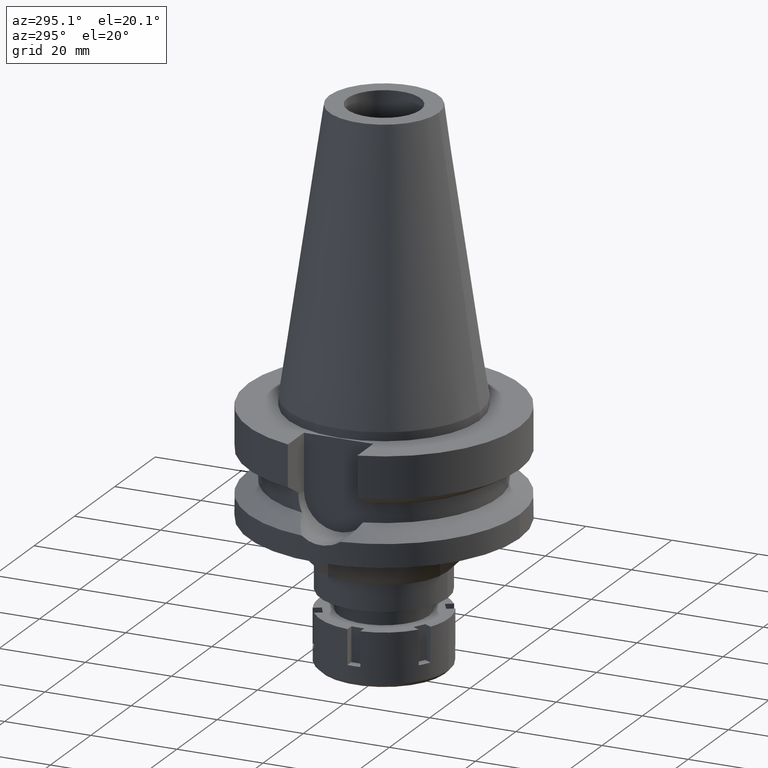
[diagram: clean part render]
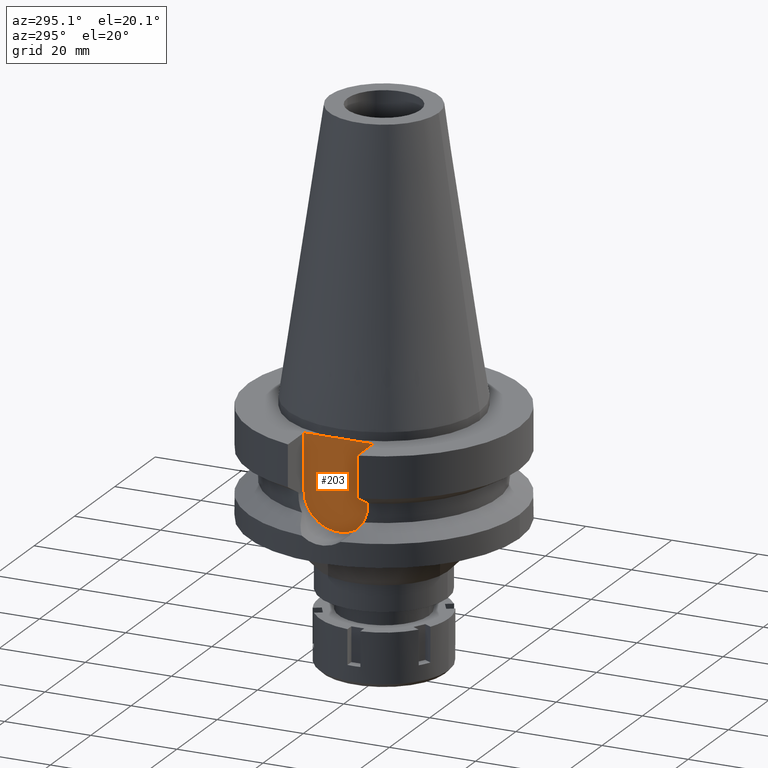
[diagram: same view with one face highlighted and labeled with its STEP entity id]
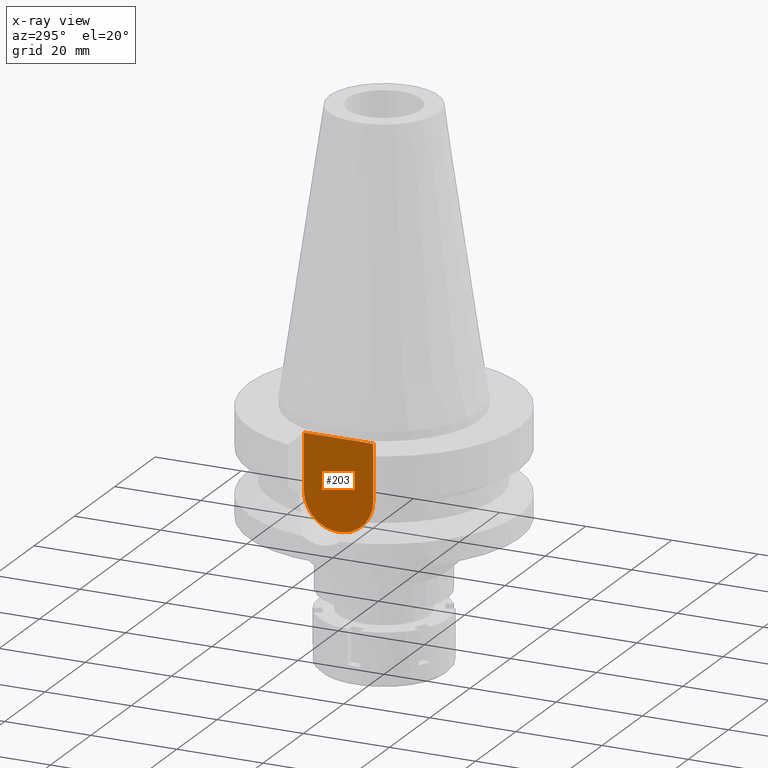
[diagram: x-ray of the same camera — body ghosted, the highlighted face saturated]
A machine part, auxiliary view. The second image highlights one B-rep face of the part: STEP entity #203.
The next image is the same camera in x-ray: the body ghosted, the highlighted face saturated — about 0% of this face is hidden behind the body in this view.
In plain terms, the highlighted planar face has unit normal (-1, 0, 0).
Its self-contained STEP definition (entity closure, byte-faithful):
#12 = ORIENTED_EDGE ( 'NONE', *, *, #2788, .F. ) ;
#41 = DIRECTION ( 'NONE',  ( -1.000000000000000000, 0.0000000000000000000, 0.0000000000000000000 ) ) ;
#202 = LINE ( 'NONE', #2956, #350 ) ;
#203 = ADVANCED_FACE ( 'NONE', ( #3075 ), #892, .T. ) ;
#208 = CARTESIAN_POINT ( 'NONE',  ( -22.50000000000000000, -8.050000000000000711, -14.94999999999999929 ) ) ;
#327 = EDGE_CURVE ( 'NONE', #1791, #2521, #687, .T. ) ;
#350 = VECTOR ( 'NONE', #2361, 1000.000000000000000 ) ;
#363 = DIRECTION ( 'NONE',  ( 0.0000000000000000000, 0.0000000000000000000, 1.000000000000000000 ) ) ;
#582 = CIRCLE ( 'NONE', #642, 8.050000000000000711 ) ;
#611 = CARTESIAN_POINT ( 'NONE',  ( -22.50000000000000000, 8.050000000000000711, -14.94999999999999929 ) ) ;
#642 = AXIS2_PLACEMENT_3D ( 'NONE', #2156, #2750, #3562 ) ;
#687 = LINE ( 'NONE', #1540, #2621 ) ;
#750 = VERTEX_POINT ( 'NONE', #611 ) ;
#892 = PLANE ( 'NONE',  #1479 ) ;
#996 = DIRECTION ( 'NONE',  ( 0.0000000000000000000, 1.000000000000000000, 0.0000000000000000000 ) ) ;
#1425 = CARTESIAN_POINT ( 'NONE',  ( -22.50000000000000000, -8.050000000000000711, -2.000000000000000000 ) ) ;
#1439 = CARTESIAN_POINT ( 'NONE',  ( -22.50000000000000000, -8.050000000000000711, -2.000000000000000000 ) ) ;
#1479 = AXIS2_PLACEMENT_3D ( 'NONE', #1916, #41, #363 ) ;
#1510 = CARTESIAN_POINT ( 'NONE',  ( -22.50000000000000000, 8.050000000000000711, -2.000000000000000000 ) ) ;
#1540 = CARTESIAN_POINT ( 'NONE',  ( -22.50000000000000000, -8.050000000000000711, -2.000000000000000000 ) ) ;
#1695 = LINE ( 'NONE', #1425, #2342 ) ;
#1739 = EDGE_LOOP ( 'NONE', ( #3326, #12, #3155, #2315 ) ) ;
#1744 = DIRECTION ( 'NONE',  ( 0.0000000000000000000, 0.0000000000000000000, -1.000000000000000000 ) ) ;
#1791 = VERTEX_POINT ( 'NONE', #1439 ) ;
#1916 = CARTESIAN_POINT ( 'NONE',  ( -22.50000000000000000, 2.173748068486999793E-14, 0.0000000000000000000 ) ) ;
#2053 = EDGE_CURVE ( 'NONE', #1791, #2669, #1695, .T. ) ;
#2156 = CARTESIAN_POINT ( 'NONE',  ( -22.50000000000000000, 1.807578675540999863E-14, -14.94999999999999929 ) ) ;
#2315 = ORIENTED_EDGE ( 'NONE', *, *, #327, .T. ) ;
#2342 = VECTOR ( 'NONE', #1744, 1000.000000000000000 ) ;
#2361 = DIRECTION ( 'NONE',  ( 0.0000000000000000000, 0.0000000000000000000, 1.000000000000000000 ) ) ;
#2521 = VERTEX_POINT ( 'NONE', #1510 ) ;
#2621 = VECTOR ( 'NONE', #996, 1000.000000000000000 ) ;
#2669 = VERTEX_POINT ( 'NONE', #208 ) ;
#2750 = DIRECTION ( 'NONE',  ( 1.000000000000000000, 0.0000000000000000000, 0.0000000000000000000 ) ) ;
#2788 = EDGE_CURVE ( 'NONE', #2669, #750, #582, .T. ) ;
#2956 = CARTESIAN_POINT ( 'NONE',  ( -22.50000000000000000, 8.050000000000000711, -14.94999999999999929 ) ) ;
#3075 = FACE_OUTER_BOUND ( 'NONE', #1739, .T. ) ;
#3155 = ORIENTED_EDGE ( 'NONE', *, *, #2053, .F. ) ;
#3201 = EDGE_CURVE ( 'NONE', #750, #2521, #202, .T. ) ;
#3326 = ORIENTED_EDGE ( 'NONE', *, *, #3201, .F. ) ;
#3562 = DIRECTION ( 'NONE',  ( 0.0000000000000000000, 0.0000000000000000000, -1.000000000000000000 ) ) ;